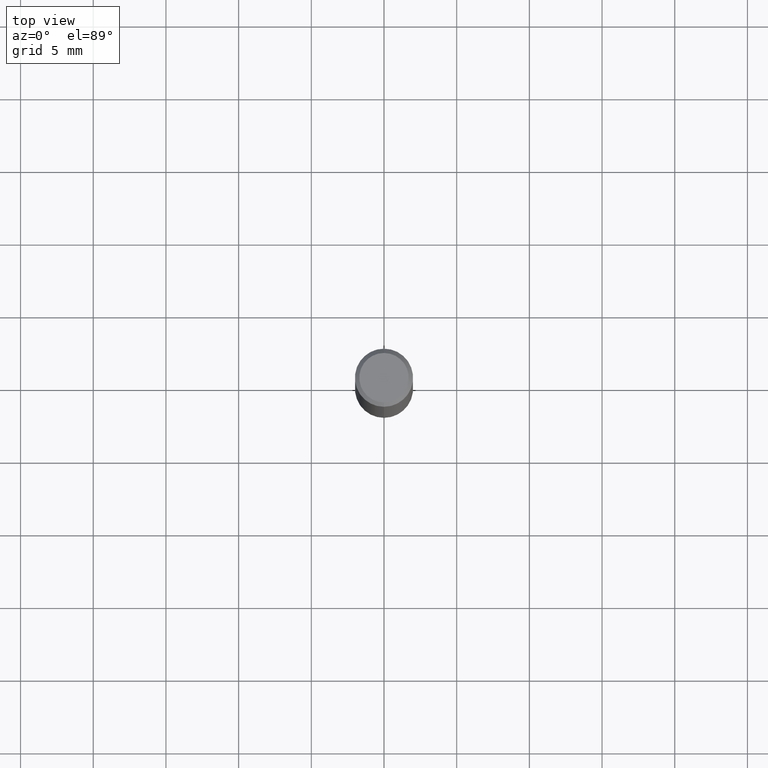
[diagram: clean part render]
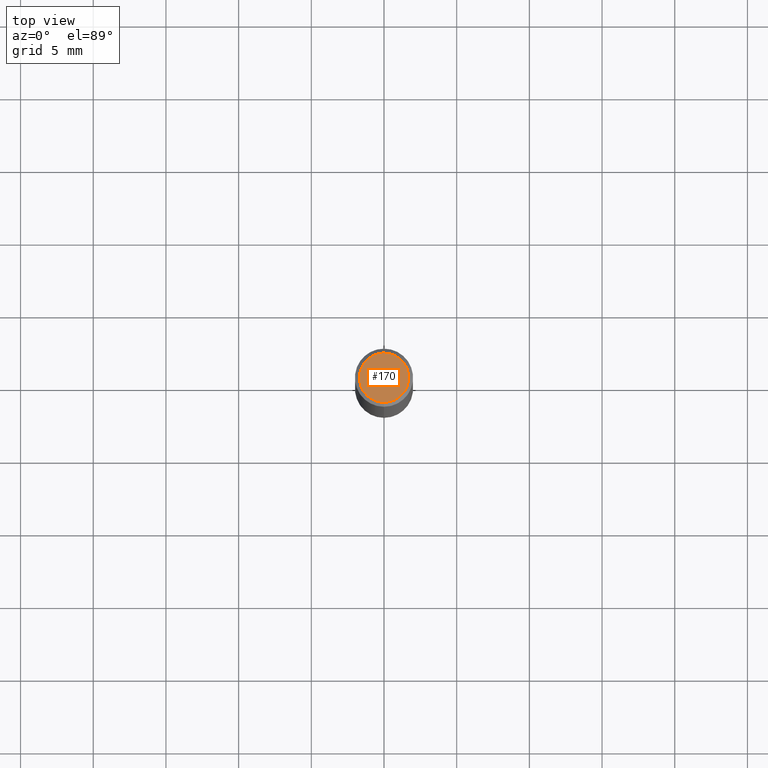
[diagram: same view with one face highlighted and labeled with its STEP entity id]
A machine part, top view. The second image highlights one B-rep face of the part: STEP entity #170.
In plain terms, the highlighted planar face has unit normal (-0, 0, 1).
Its self-contained STEP definition (entity closure, byte-faithful):
#104=VERTEX_POINT('',#232);
#112=EDGE_CURVE('',#104,#138,#240,.T.);
#138=VERTEX_POINT('',#269);
#170=ADVANCED_FACE('',(#303),#304,.T.);
#188=EDGE_CURVE('',#138,#104,#327,.T.);
#232=CARTESIAN_POINT('',(2.08183080149804E-016,-1.7,0.0));
#240=CIRCLE('',#380,1.7);
#269=CARTESIAN_POINT('',(0.0,1.7,0.0));
#303=FACE_OUTER_BOUND('',#459,.T.);
#304=PLANE('',#460);
#327=CIRCLE('',#488,1.7);
#380=AXIS2_PLACEMENT_3D('',#528,#529,#530);
#459=EDGE_LOOP('',(#599,#600));
#460=AXIS2_PLACEMENT_3D('',#601,#602,#603);
#488=AXIS2_PLACEMENT_3D('',#639,#640,#641);
#528=CARTESIAN_POINT('',(0.0,0.0,0.0));
#529=DIRECTION('',(0.0,0.0,-1.0));
#530=DIRECTION('',(0.0,1.0,0.0));
#599=ORIENTED_EDGE('',*,*,#188,.F.);
#600=ORIENTED_EDGE('',*,*,#112,.F.);
#601=CARTESIAN_POINT('',(0.0,0.85,0.0));
#602=DIRECTION('',(-0.0,0.0,1.0));
#603=DIRECTION('',(0.0,-1.0,0.0));
#639=CARTESIAN_POINT('',(0.0,0.0,0.0));
#640=DIRECTION('',(0.0,0.0,-1.0));
#641=DIRECTION('',(0.0,1.0,0.0));